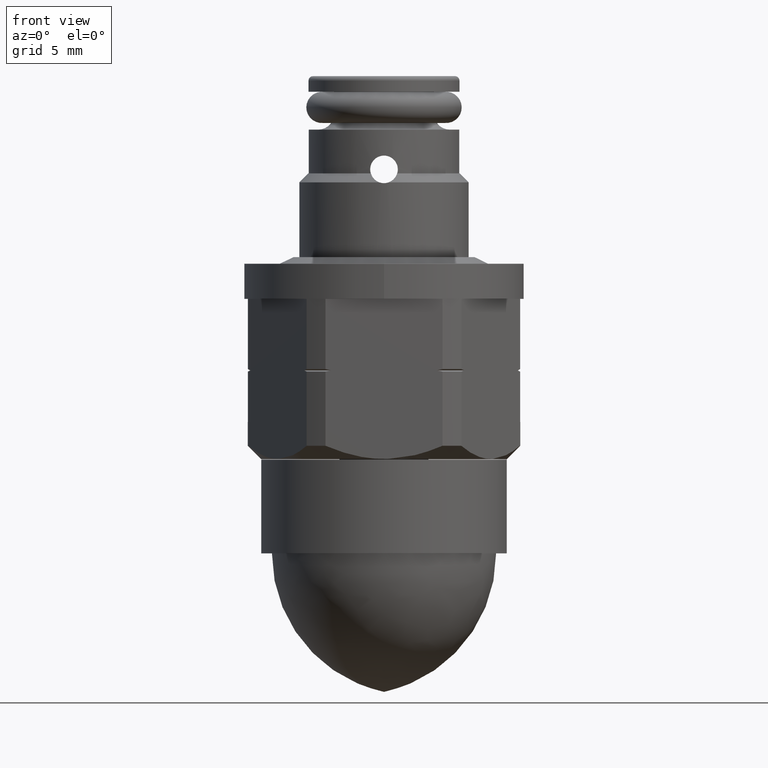
[diagram: clean part render]
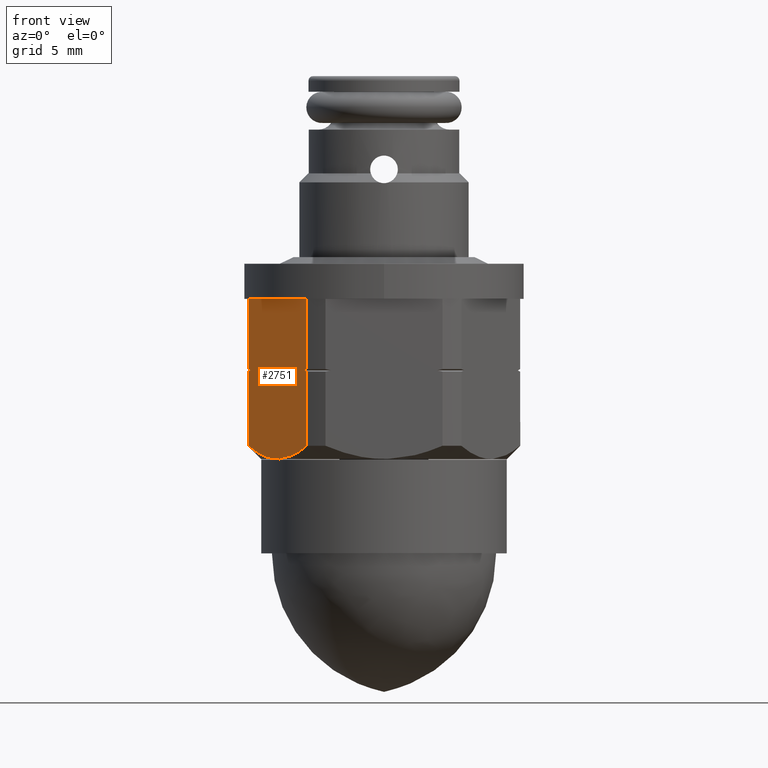
[diagram: same view with one face highlighted and labeled with its STEP entity id]
A machine part, front view. The second image highlights one B-rep face of the part: STEP entity #2751.
In plain terms, the highlighted planar face has unit normal (-0.866, -0.5, 0).
Its self-contained STEP definition (entity closure, byte-faithful):
#708=DIRECTION('',(-5.E-1,8.660254037844E-1,0.E0));
#709=VECTOR('',#708,6.647767658396E0);
#710=CARTESIAN_POINT('',(-4.398244053463E0,-6.377417835314E0,0.E0));
#711=LINE('',#710,#709);
#712=DIRECTION('',(0.E0,0.E0,-1.E0));
#713=VECTOR('',#712,3.990676515813E0);
#714=CARTESIAN_POINT('',(-4.398244053463E0,-6.377417835314E0,0.E0));
#715=LINE('',#714,#713);
#716=CARTESIAN_POINT('',(-4.552157892229E0,-6.110831246583E0,-4.064E0));
#717=CARTESIAN_POINT('',(-4.535131763234E0,-6.140321367059E0,
-4.056218385015E0));
#718=CARTESIAN_POINT('',(-4.501029397781E0,-6.199388396681E0,
-4.040409972535E0));
#719=CARTESIAN_POINT('',(-4.449723953617E0,-6.288252032679E0,
-4.015965878843E0));
#720=CARTESIAN_POINT('',(-4.415420795636E0,-6.347666845162E0,
-3.999186376410E0));
#721=CARTESIAN_POINT('',(-4.398244053463E0,-6.377417835314E0,
-3.990676515813E0));
#723=CARTESIAN_POINT('',(-4.552157892229E0,-6.110831246583E0,-4.064E0));
#724=CARTESIAN_POINT('',(-4.535131763234E0,-6.140321367059E0,
-4.071781614985E0));
#725=CARTESIAN_POINT('',(-4.501029397781E0,-6.199388396681E0,
-4.087590027465E0));
#726=CARTESIAN_POINT('',(-4.449723953617E0,-6.288252032679E0,
-4.112034121157E0));
#727=CARTESIAN_POINT('',(-4.415420795636E0,-6.347666845162E0,
-4.128813623590E0));
#728=CARTESIAN_POINT('',(-4.398244053463E0,-6.377417835314E0,
-4.137323484187E0));
#730=DIRECTION('',(0.E0,0.E0,1.E0));
#731=VECTOR('',#730,4.219276515813E0);
#732=CARTESIAN_POINT('',(-4.398244053463E0,-6.377417835314E0,-8.3566E0));
#733=LINE('',#732,#731);
#734=CARTESIAN_POINT('',(-4.398244053463E0,-6.377417835314E0,-8.3566E0));
#735=CARTESIAN_POINT('',(-4.490631856030E0,-6.217397467268E0,
-8.435878771903E0));
#736=CARTESIAN_POINT('',(-4.672422496419E0,-5.902526841774E0,
-8.581032405105E0));
#737=CARTESIAN_POINT('',(-4.934721804401E0,-5.448211113559E0,
-8.758277756197E0));
#738=CARTESIAN_POINT('',(-5.190365883812E0,-5.005422579365E0,
-8.898487887091E0));
#739=CARTESIAN_POINT('',(-5.441501122848E0,-4.570443585784E0,
-9.003011396726E0));
#740=CARTESIAN_POINT('',(-5.689910054051E0,-4.140186695886E0,
-9.072574549674E0));
#741=CARTESIAN_POINT('',(-5.936987660949E0,-3.712235727327E0,
-9.107351620122E0));
#742=CARTESIAN_POINT('',(-6.183385885271E0,-3.285461483906E0,
-9.107351519464E0));
#743=CARTESIAN_POINT('',(-6.430463620944E0,-2.857510292302E0,
-9.072574162050E0));
#744=CARTESIAN_POINT('',(-6.678871876979E0,-2.427254571828E0,
-9.003011019901E0));
#745=CARTESIAN_POINT('',(-6.930007414986E0,-1.992275060414E0,
-8.898487218353E0));
#746=CARTESIAN_POINT('',(-7.185650495537E0,-1.549488256297E0,
-8.758277486421E0));
#747=CARTESIAN_POINT('',(-7.447949223824E0,-1.095173532143E0,
-8.581032557955E0));
#748=CARTESIAN_POINT('',(-7.629739946685E0,-7.803027638039E-1,
-8.435878886383E0));
#749=CARTESIAN_POINT('',(-7.722127882661E0,-6.202821646863E-1,-8.3566E0));
#751=DIRECTION('',(0.E0,0.E0,-1.E0));
#752=VECTOR('',#751,4.219276515813E0);
#753=CARTESIAN_POINT('',(-7.722127882661E0,-6.202821646863E-1,
-4.137323484187E0));
#754=LINE('',#753,#752);
#755=CARTESIAN_POINT('',(-7.722127882661E0,-6.202821646863E-1,
-4.137323484187E0));
#756=CARTESIAN_POINT('',(-7.704951139518E0,-6.500331565182E-1,
-4.128813623109E0));
#757=CARTESIAN_POINT('',(-7.670647980242E0,-7.094479712453E-1,
-4.112034120059E0));
#758=CARTESIAN_POINT('',(-7.619342536118E0,-7.983116071726E-1,
-4.087590026424E0));
#759=CARTESIAN_POINT('',(-7.585240171936E0,-8.573786345941E-1,
-4.071781614548E0));
#760=CARTESIAN_POINT('',(-7.568214043895E0,-8.868687534167E-1,-4.064E0));
#762=CARTESIAN_POINT('',(-7.722127882661E0,-6.202821646863E-1,
-3.990676515813E0));
#763=CARTESIAN_POINT('',(-7.704951139518E0,-6.500331565182E-1,
-3.999186376891E0));
#764=CARTESIAN_POINT('',(-7.670647980242E0,-7.094479712453E-1,
-4.015965879941E0));
#765=CARTESIAN_POINT('',(-7.619342536118E0,-7.983116071726E-1,
-4.040409973576E0));
#766=CARTESIAN_POINT('',(-7.585240171936E0,-8.573786345941E-1,
-4.056218385452E0));
#767=CARTESIAN_POINT('',(-7.568214043895E0,-8.868687534167E-1,-4.064E0));
#769=DIRECTION('',(0.E0,0.E0,-1.E0));
#770=VECTOR('',#769,3.990676515813E0);
#771=CARTESIAN_POINT('',(-7.722127882661E0,-6.202821646863E-1,0.E0));
#772=LINE('',#771,#770);
#1609=CARTESIAN_POINT('',(-7.568214043895E0,-8.868687534167E-1,-4.064E0));
#1611=VERTEX_POINT('',#1609);
#1612=CARTESIAN_POINT('',(-4.552157892229E0,-6.110831246583E0,-4.064E0));
#1614=VERTEX_POINT('',#1612);
#1644=CARTESIAN_POINT('',(-4.398244053463E0,-6.377417835314E0,-8.3566E0));
#1645=CARTESIAN_POINT('',(-4.398244053463E0,-6.377417835314E0,
-4.137323484187E0));
#1646=VERTEX_POINT('',#1644);
#1647=VERTEX_POINT('',#1645);
#1664=VERTEX_POINT('',#749);
#1674=CARTESIAN_POINT('',(-7.722127882661E0,-6.202821646863E-1,
-4.137323484187E0));
#1675=VERTEX_POINT('',#1674);
#1691=CARTESIAN_POINT('',(-4.398244053463E0,-6.377417835314E0,
-3.990676515813E0));
#1693=VERTEX_POINT('',#1691);
#1702=VERTEX_POINT('',#762);
#1788=CARTESIAN_POINT('',(-4.398244053463E0,-6.377417835314E0,0.E0));
#1789=CARTESIAN_POINT('',(-7.722127882661E0,-6.202821646863E-1,0.E0));
#1790=VERTEX_POINT('',#1788);
#1791=VERTEX_POINT('',#1789);
#2725=CARTESIAN_POINT('',(-4.040123978708E0,-6.9977E0,0.E0));
#2726=DIRECTION('',(-8.660254037844E-1,-5.E-1,0.E0));
#2727=DIRECTION('',(-5.E-1,8.660254037844E-1,0.E0));
#2728=AXIS2_PLACEMENT_3D('',#2725,#2726,#2727);
#2729=PLANE('',#2728);
#2730=ORIENTED_EDGE('',*,*,#2686,.F.);
#2732=ORIENTED_EDGE('',*,*,#2731,.T.);
#2734=ORIENTED_EDGE('',*,*,#2733,.F.);
#2736=ORIENTED_EDGE('',*,*,#2735,.T.);
#2738=ORIENTED_EDGE('',*,*,#2737,.F.);
#2740=ORIENTED_EDGE('',*,*,#2739,.T.);
#2742=ORIENTED_EDGE('',*,*,#2741,.F.);
#2744=ORIENTED_EDGE('',*,*,#2743,.T.);
#2746=ORIENTED_EDGE('',*,*,#2745,.F.);
#2748=ORIENTED_EDGE('',*,*,#2747,.F.);
#2749=EDGE_LOOP('',(#2730,#2732,#2734,#2736,#2738,#2740,#2742,#2744,#2746,
#2748));
#2750=FACE_OUTER_BOUND('',#2749,.F.);
#2751=ADVANCED_FACE('',(#2750),#2729,.T.);
#722=B_SPLINE_CURVE_WITH_KNOTS('',3,(#716,#717,#718,#719,#720,#721),
.UNSPECIFIED.,.F.,.F.,(4,1,1,4),(0.E0,3.333333333333E-1,6.666666666667E-1,1.E0),
.UNSPECIFIED.);
#729=B_SPLINE_CURVE_WITH_KNOTS('',3,(#723,#724,#725,#726,#727,#728),
.UNSPECIFIED.,.F.,.F.,(4,1,1,4),(0.E0,3.333333333333E-1,6.666666666667E-1,1.E0),
.UNSPECIFIED.);
#750=B_SPLINE_CURVE_WITH_KNOTS('',3,(#734,#735,#736,#737,#738,#739,#740,#741,
#742,#743,#744,#745,#746,#747,#748,#749),.UNSPECIFIED.,.F.,.F.,(4,1,1,1,1,1,1,1,
1,1,1,1,1,4),(0.E0,7.692307692308E-2,1.538461538462E-1,2.307692307692E-1,
3.076923076923E-1,3.846153846154E-1,4.615384615385E-1,5.384615384615E-1,
6.153846153846E-1,6.923076923077E-1,7.692307692308E-1,8.461538461538E-1,
9.230769230769E-1,1.E0),.UNSPECIFIED.);
#761=B_SPLINE_CURVE_WITH_KNOTS('',3,(#755,#756,#757,#758,#759,#760),
.UNSPECIFIED.,.F.,.F.,(4,1,1,4),(0.E0,3.333333333333E-1,6.666666666667E-1,1.E0),
.UNSPECIFIED.);
#768=B_SPLINE_CURVE_WITH_KNOTS('',3,(#762,#763,#764,#765,#766,#767),
.UNSPECIFIED.,.F.,.F.,(4,1,1,4),(0.E0,3.333333333333E-1,6.666666666667E-1,1.E0),
.UNSPECIFIED.);
#2686=EDGE_CURVE('',#1790,#1791,#711,.T.);
#2731=EDGE_CURVE('',#1790,#1693,#715,.T.);
#2733=EDGE_CURVE('',#1614,#1693,#722,.T.);
#2735=EDGE_CURVE('',#1614,#1647,#729,.T.);
#2737=EDGE_CURVE('',#1646,#1647,#733,.T.);
#2739=EDGE_CURVE('',#1646,#1664,#750,.T.);
#2741=EDGE_CURVE('',#1675,#1664,#754,.T.);
#2743=EDGE_CURVE('',#1675,#1611,#761,.T.);
#2745=EDGE_CURVE('',#1702,#1611,#768,.T.);
#2747=EDGE_CURVE('',#1791,#1702,#772,.T.);